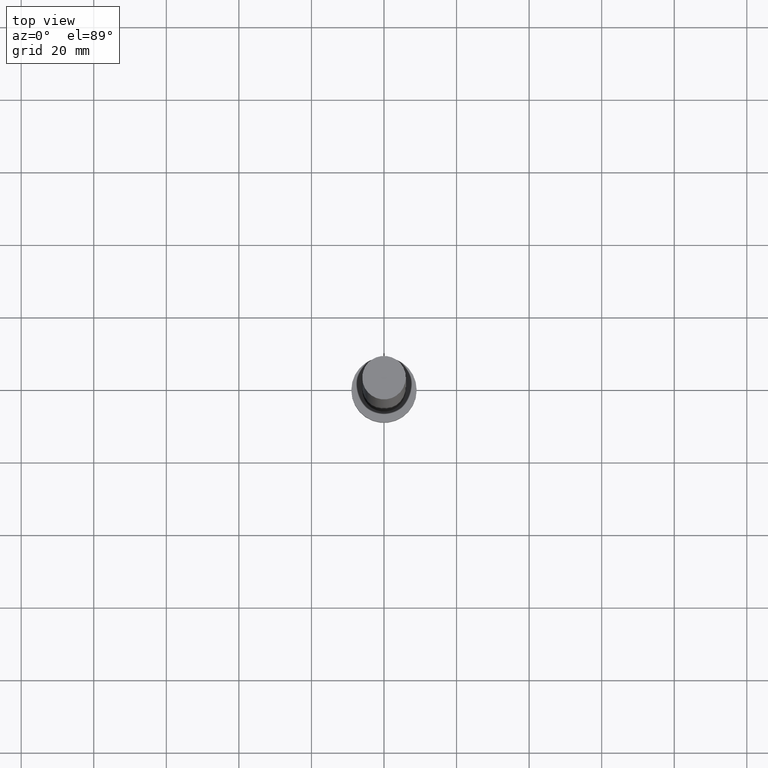
[diagram: clean part render]
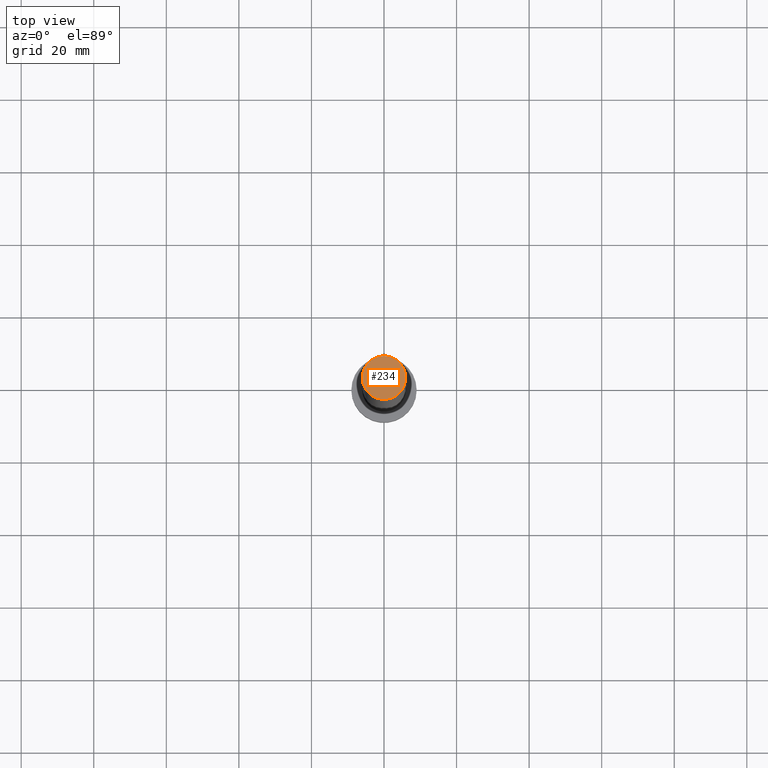
[diagram: same view with one face highlighted and labeled with its STEP entity id]
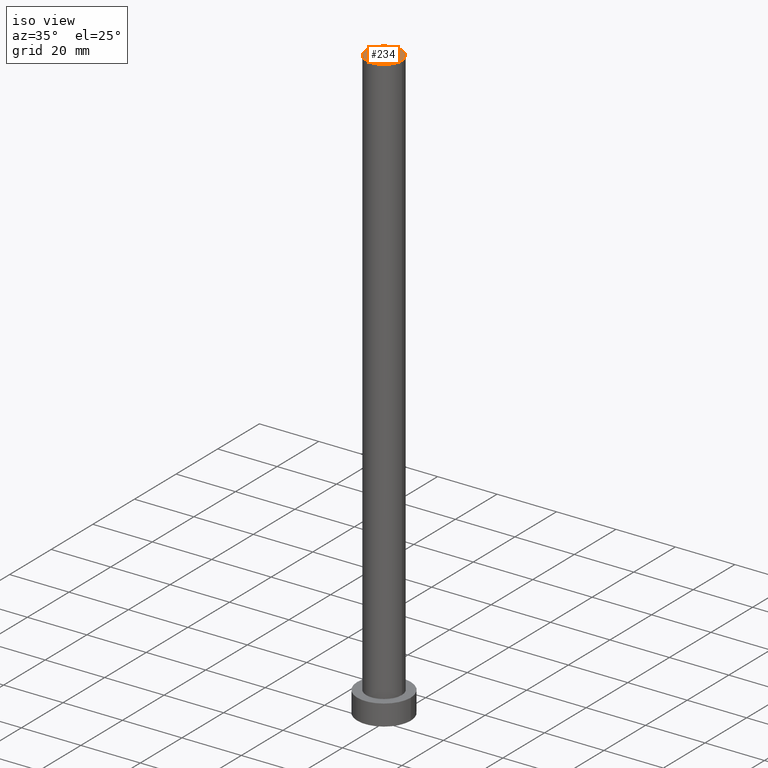
[diagram: same view with one face highlighted and labeled with its STEP entity id]
A machine part, top view. The second image highlights one B-rep face of the part: STEP entity #234.
A second angle (iso view) of the same face is appended — the face is thin or edge-on in the first view.
In plain terms, the highlighted planar face has unit normal (0, 0, 1).
Its self-contained STEP definition (entity closure, byte-faithful):
#9 = EDGE_LOOP ( 'NONE', ( #179, #236 ) ) ;
#16 = AXIS2_PLACEMENT_3D ( 'NONE', #250, #134, #120 ) ;
#35 = VERTEX_POINT ( 'NONE', #154 ) ;
#47 = DIRECTION ( 'NONE',  ( 1.000000000000000000, 0.000000000000000000, 0.000000000000000000 ) ) ;
#48 = EDGE_CURVE ( 'NONE', #204, #35, #125, .T. ) ;
#65 = DIRECTION ( 'NONE',  ( 0.000000000000000000, 0.000000000000000000, 1.000000000000000000 ) ) ;
#111 = CARTESIAN_POINT ( 'NONE',  ( -6.000000000000000888, 0.000000000000000000, 200.0000000000000000 ) ) ;
#120 = DIRECTION ( 'NONE',  ( 1.000000000000000000, 0.000000000000000000, 0.000000000000000000 ) ) ;
#125 = CIRCLE ( 'NONE', #16, 6.000000000000000888 ) ;
#134 = DIRECTION ( 'NONE',  ( 0.000000000000000000, 0.000000000000000000, 1.000000000000000000 ) ) ;
#145 = DIRECTION ( 'NONE',  ( 0.000000000000000000, 0.000000000000000000, 1.000000000000000000 ) ) ;
#154 = CARTESIAN_POINT ( 'NONE',  ( 6.000000000000000888, 7.347880794884120722E-16, 200.0000000000000000 ) ) ;
#155 = EDGE_CURVE ( 'NONE', #35, #204, #189, .T. ) ;
#156 = AXIS2_PLACEMENT_3D ( 'NONE', #207, #145, #229 ) ;
#163 = CARTESIAN_POINT ( 'NONE',  ( 0.000000000000000000, 0.000000000000000000, 200.0000000000000000 ) ) ;
#179 = ORIENTED_EDGE ( 'NONE', *, *, #48, .T. ) ;
#185 = FACE_OUTER_BOUND ( 'NONE', #9, .T. ) ;
#189 = CIRCLE ( 'NONE', #219, 6.000000000000000888 ) ;
#204 = VERTEX_POINT ( 'NONE', #111 ) ;
#207 = CARTESIAN_POINT ( 'NONE',  ( 0.000000000000000000, 0.000000000000000000, 200.0000000000000000 ) ) ;
#219 = AXIS2_PLACEMENT_3D ( 'NONE', #163, #65, #47 ) ;
#224 = PLANE ( 'NONE',  #156 ) ;
#229 = DIRECTION ( 'NONE',  ( 1.000000000000000000, 0.000000000000000000, -0.000000000000000000 ) ) ;
#234 = ADVANCED_FACE ( 'NONE', ( #185 ), #224, .T. ) ;
#236 = ORIENTED_EDGE ( 'NONE', *, *, #155, .T. ) ;
#250 = CARTESIAN_POINT ( 'NONE',  ( 0.000000000000000000, 0.000000000000000000, 200.0000000000000000 ) ) ;